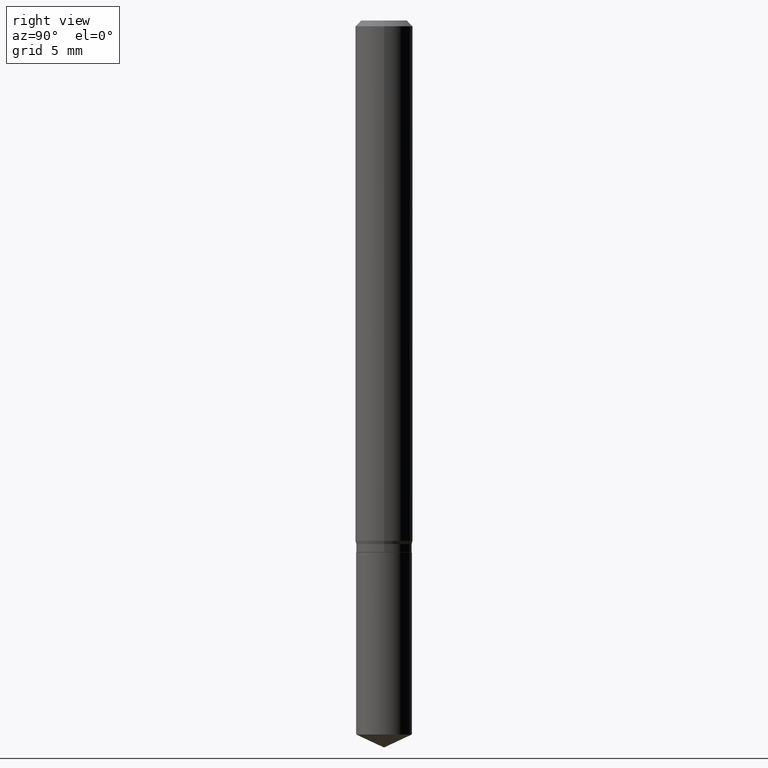
[diagram: clean part render]
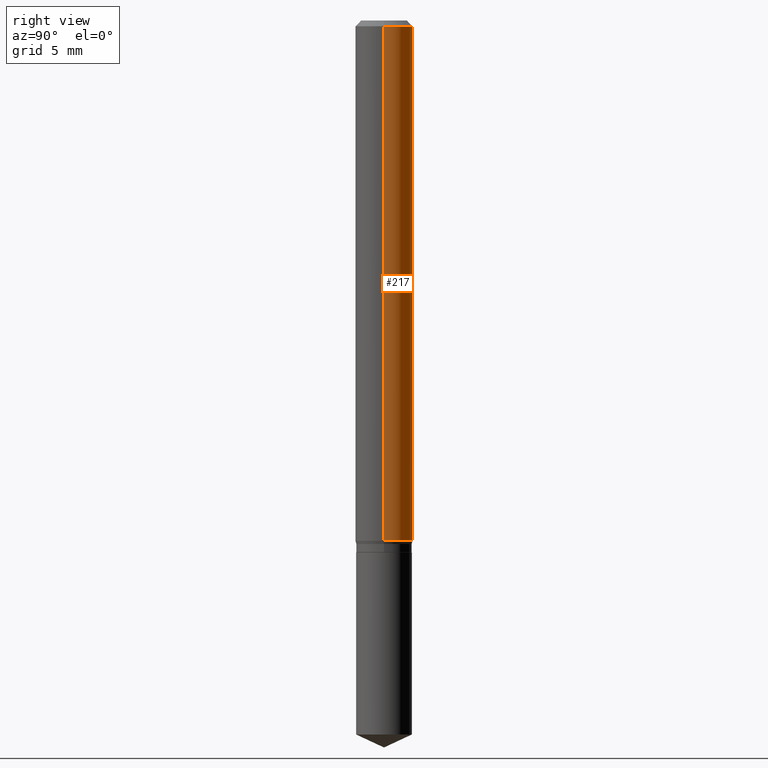
[diagram: same view with one face highlighted and labeled with its STEP entity id]
A machine part, right view. The second image highlights one B-rep face of the part: STEP entity #217.
In plain terms, the highlighted cylindrical surface (edge-blend (fillet) strip) has radius 1.4999 mm, axis along (-0, 0, 1).
Its self-contained STEP definition (entity closure, byte-faithful):
#7 = DIRECTION ( 'NONE',  ( 1.000000000000000000, -6.982962677686265133E-15, 0.000000000000000000 ) ) ;
#8 = CIRCLE ( 'NONE', #353, 0.05905000000000013016 ) ;
#20 = ORIENTED_EDGE ( 'NONE', *, *, #114, .F. ) ;
#70 = DIRECTION ( 'NONE',  ( 1.000000000000000000, -6.982962677686266711E-15, 4.876176775795936353E-29 ) ) ;
#79 = DIRECTION ( 'NONE',  ( -2.445468806185136597E-29, 3.491481338843145583E-15, 1.000000000000000000 ) ) ;
#106 = EDGE_LOOP ( 'NONE', ( #349, #120, #20, #369 ) ) ;
#107 = DIRECTION ( 'NONE',  ( -2.445468806185136597E-29, 3.491481338843145583E-15, 1.000000000000000000 ) ) ;
#110 = LINE ( 'NONE', #391, #488 ) ;
#114 = EDGE_CURVE ( 'NONE', #162, #333, #370, .T. ) ;
#120 = ORIENTED_EDGE ( 'NONE', *, *, #444, .T. ) ;
#144 = AXIS2_PLACEMENT_3D ( 'NONE', #449, #107, #389 ) ;
#148 = CARTESIAN_POINT ( 'NONE',  ( 0.05905000000000013016, -4.150913617390172394E-15, -1.070768911086753983 ) ) ;
#162 = VERTEX_POINT ( 'NONE', #262 ) ;
#178 = DIRECTION ( 'NONE',  ( -2.445468806185136597E-29, 3.491481338843145583E-15, 1.000000000000000000 ) ) ;
#181 = VERTEX_POINT ( 'NONE', #148 ) ;
#217 = ADVANCED_FACE ( 'NONE', ( #224 ), #489, .T. ) ;
#224 = FACE_OUTER_BOUND ( 'NONE', #106, .T. ) ;
#243 = CARTESIAN_POINT ( 'NONE',  ( -0.05904999999999999832, -1.470326547475926925E-15, -0.01181000000000006350 ) ) ;
#247 = VECTOR ( 'NONE', #278, 39.37007874015748143 ) ;
#248 = EDGE_CURVE ( 'NONE', #181, #162, #487, .T. ) ;
#262 = CARTESIAN_POINT ( 'NONE',  ( 0.05904999999999999832, -4.535783407291118600E-16, -0.01181000000000006350 ) ) ;
#274 = CARTESIAN_POINT ( 'NONE',  ( 0.000000000000000000, 0.000000000000000000, 0.000000000000000000 ) ) ;
#278 = DIRECTION ( 'NONE',  ( -2.445468806185136877E-29, 3.491481338843145188E-15, 1.000000000000000000 ) ) ;
#293 = CARTESIAN_POINT ( 'NONE',  ( 2.618531970695483094E-29, -3.738569671272796685E-15, -1.070768911086753983 ) ) ;
#316 = CARTESIAN_POINT ( 'NONE',  ( 0.05905000000000006771, -4.123439461173745257E-16, 2.879382386107503723E-30 ) ) ;
#333 = VERTEX_POINT ( 'NONE', #243 ) ;
#349 = ORIENTED_EDGE ( 'NONE', *, *, #392, .T. ) ;
#353 = AXIS2_PLACEMENT_3D ( 'NONE', #293, #178, #7 ) ;
#369 = ORIENTED_EDGE ( 'NONE', *, *, #248, .F. ) ;
#370 = CIRCLE ( 'NONE', #144, 0.05904999999999999832 ) ;
#389 = DIRECTION ( 'NONE',  ( 1.000000000000000000, -6.982962677686266711E-15, 0.000000000000000000 ) ) ;
#391 = CARTESIAN_POINT ( 'NONE',  ( -0.05905000000000006771, 4.195754854663396409E-16, -2.904631170795525045E-30 ) ) ;
#392 = EDGE_CURVE ( 'NONE', #181, #459, #8, .T. ) ;
#417 = CARTESIAN_POINT ( 'NONE',  ( -0.05905000000000013016, -3.318994185806457192E-15, -1.070768911086753983 ) ) ;
#444 = EDGE_CURVE ( 'NONE', #459, #333, #110, .T. ) ;
#449 = CARTESIAN_POINT ( 'NONE',  ( 2.888098660104662014E-31, -4.123439461173777182E-17, -0.01181000000000006350 ) ) ;
#455 = DIRECTION ( 'NONE',  ( -2.445468806185136877E-29, 3.491481338843145188E-15, 1.000000000000000000 ) ) ;
#459 = VERTEX_POINT ( 'NONE', #417 ) ;
#482 = AXIS2_PLACEMENT_3D ( 'NONE', #274, #79, #70 ) ;
#487 = LINE ( 'NONE', #316, #247 ) ;
#488 = VECTOR ( 'NONE', #455, 39.37007874015748143 ) ;
#489 = CYLINDRICAL_SURFACE ( 'NONE', #482, 0.05905000000000006771 ) ;